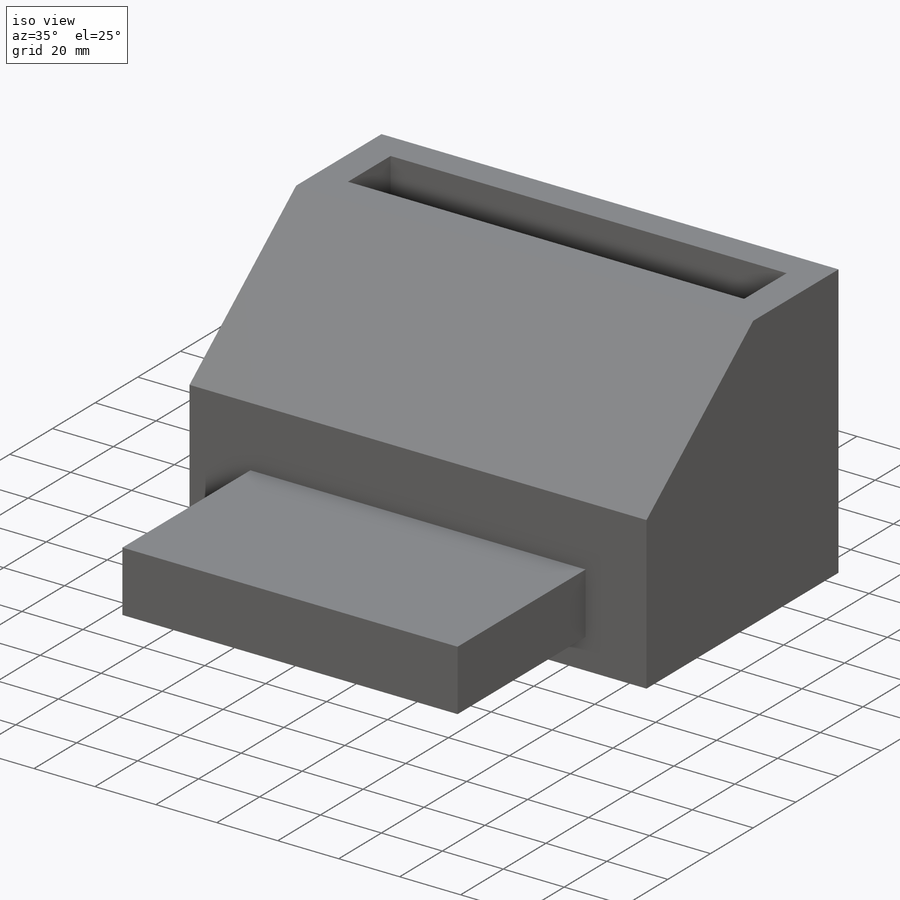
[diagram: iso view]
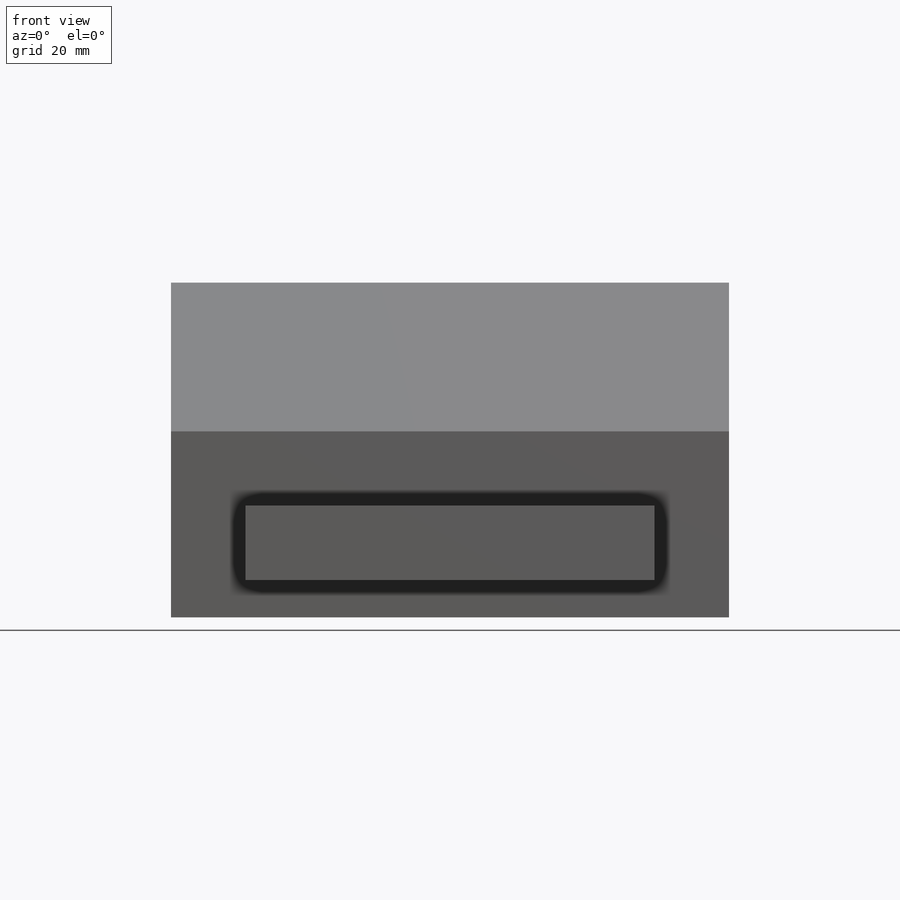
[diagram: front view]
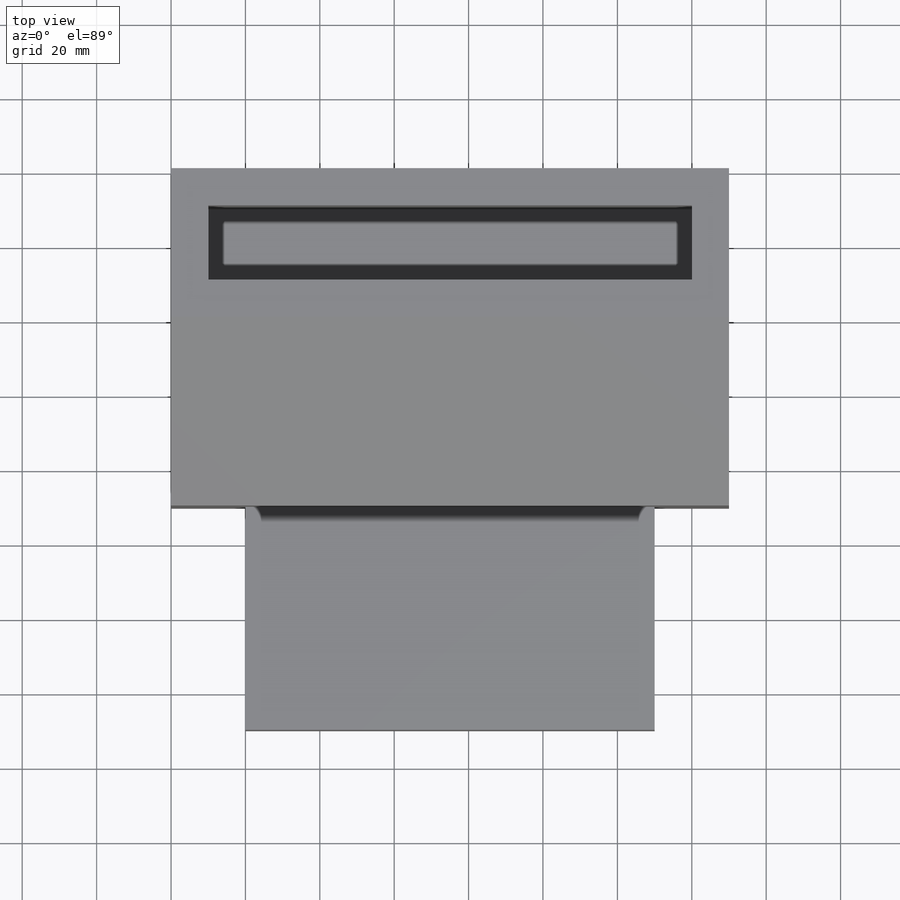
[diagram: top view]
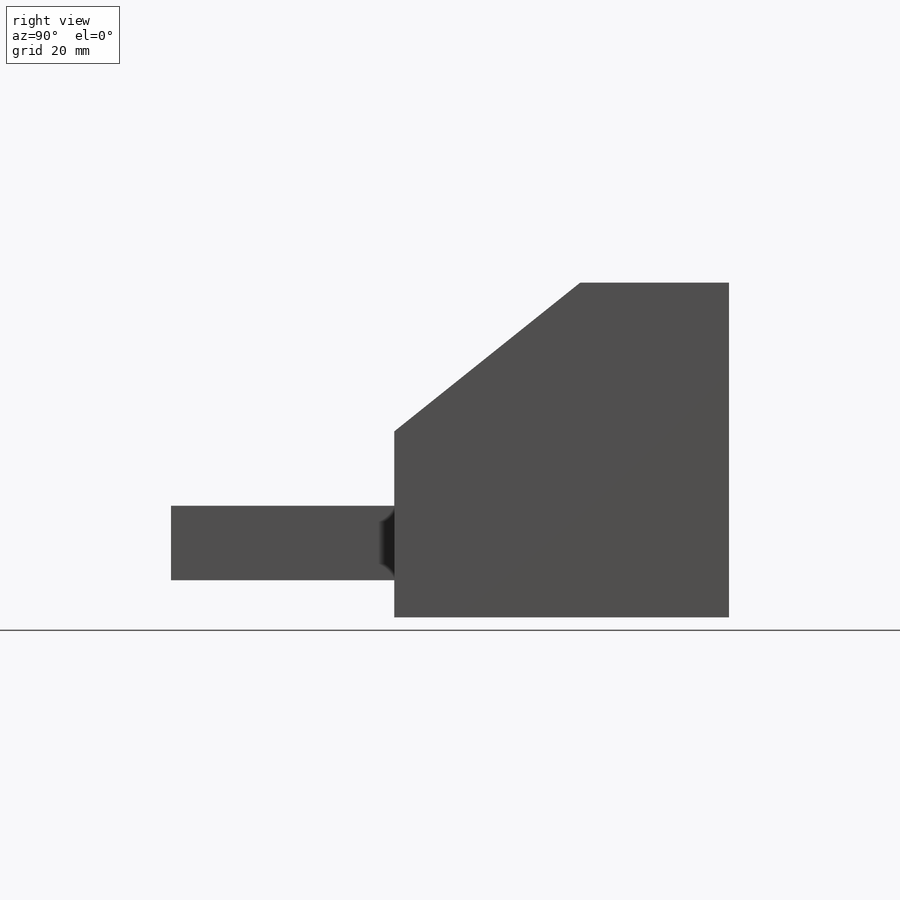
[diagram: right view]
SOLIDWORKS PART (.sldprt)
format: sldprt  version: not decoded by parser v0  size: 174,592 bytes
history: native  units: mm
features: sketch x3, extrude x2, material x1, cut_extrude x1 (+12 scaffold rows collapsed)
feature tree (19):
  scaffold x12  (default folders/planes/origin — collapsed)
  material  "Material <not specified>"
  sketch  "Sketch1"  dims[D1=90.0mm D2=90.0mm D3=40.0mm D4=50.0mm]
  extrude  "Boss-Extrude1"  Depth=150mm
  sketch  "Sketch2"  dims[D1=110.0mm D2=20.0mm D3=20.0mm D4=20.0mm]
  extrude  "Boss-Extrude2"  Depth=60mm
  sketch  "Sketch3"  dims[D1=130.0mm D2=10.0mm D3=10.0mm D4=20.0mm]
  cut_extrude  "Cut-Extrude1"  Depth=60mm
decode coverage: 6 of 6 modeling features carry decoded parameters
note: suppression state not decoded; provenance and decode notes live in map.json
